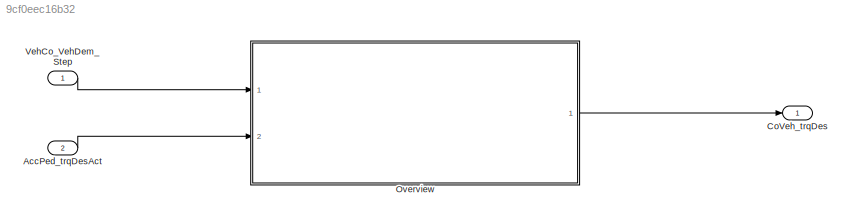
MODEL slx_9cf0eec16b32
KIND model
CONFIG AbsTol = auto
CONFIG EnableMultiTasking = off
CONFIG FixedStep = 0.001
CONFIG MaxStep = auto
CONFIG MinStep = auto
CONFIG RelTol = 1e-3
CONFIG SampleTimeConstraint = Unconstrained
CONFIG Solver = FixedStepDiscrete
CONFIG SolverName = FixedStepDiscrete
CONFIG StartTime = 0.0
CONFIG StopTime = Inf
BLOCK [Inport] AccPed_trqDesAct
  Description = driver torque raw of propulsion
  IconDisplay = Port number
  OutDataTypeStr = Torq
  OutMax = 3000
  OutMin = -3000
  Port = 2
  PortDimensions = [1 1]
  Unit = Nm
BLOCK [Outport] CoVeh_trqDes
  Description = Setpoint torque order to the drive train (gearbox output torque)
  IconDisplay = Port number
  OutDataTypeStr = Torq
  OutMax = 3000
  OutMin = -3000
  PortDimensions = [1 1]
  Unit = Nm
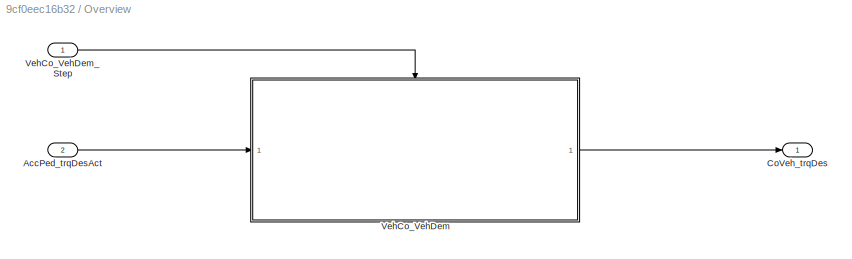
BLOCK [SubSystem] Overview
  Ports = [2, 1]
  RequestExecContextInheritance = off
BLOCK [Inport] Overview/AccPed_trqDesAct
  IconDisplay = Port number
  Port = 2
BLOCK [Outport] Overview/CoVeh_trqDes
  IconDisplay = Port number
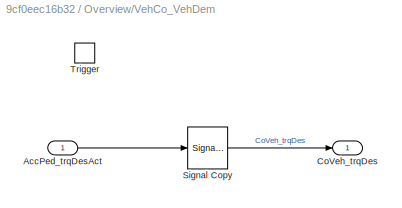
BLOCK [SubSystem] Overview/VehCo_VehDem
  Ports = [1, 1, 0, 1]
  RequestExecContextInheritance = off
BLOCK [Inport] Overview/VehCo_VehDem/AccPed_trqDesAct
  IconDisplay = Port number
  Tag = Nm
BLOCK [Outport] Overview/VehCo_VehDem/CoVeh_trqDes
  IconDisplay = Port number
  Tag = Nm
BLOCK [SignalConversion] Overview/VehCo_VehDem/Signal Copy
  OverrideOpt = off
BLOCK [TriggerPort] Overview/VehCo_VehDem/Trigger
  PortDimensions = 1
  Ports = []
  StatesWhenEnabling = held
  TriggerType = function-call
  VariantControl = Variant
BLOCK [Inport] Overview/VehCo_VehDem_Step
  IconDisplay = Port number
BLOCK [Inport] VehCo_VehDem_Step
  IconDisplay = Port number
  OutputFunctionCall = on
LINE AccPed_trqDesAct:1 -> Overview:2
LINE Overview/AccPed_trqDesAct:1 -> Overview/VehCo_VehDem:1
LINE Overview/VehCo_VehDem/AccPed_trqDesAct:1 -> Overview/VehCo_VehDem/Signal Copy:1
LINE Overview/VehCo_VehDem/Signal Copy:1 -> Overview/VehCo_VehDem/CoVeh_trqDes:1
LINE Overview/VehCo_VehDem:1 -> Overview/CoVeh_trqDes:1
LINE Overview/VehCo_VehDem_Step:1 -> Overview/VehCo_VehDem:trigger
LINE Overview:1 -> CoVeh_trqDes:1
LINE VehCo_VehDem_Step:1 -> Overview:1
